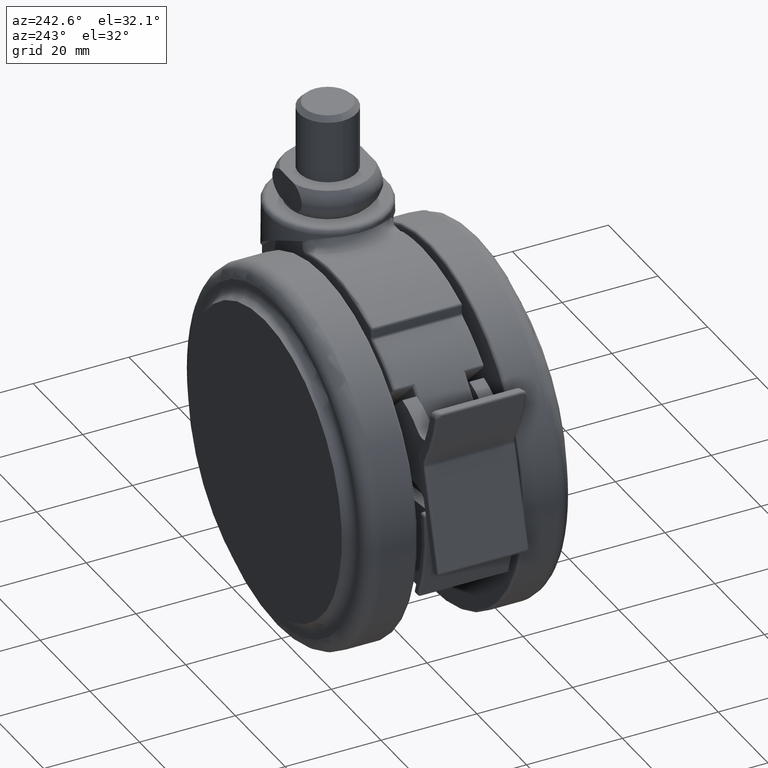
[diagram: clean part render]
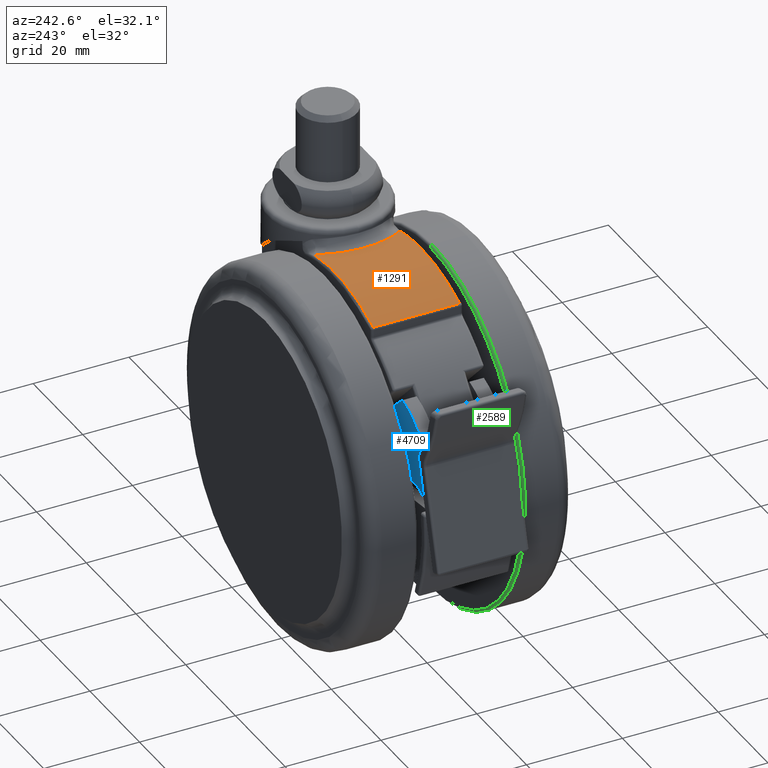
[diagram: same view with three faces highlighted in distinct colors, each labeled with its STEP entity id]
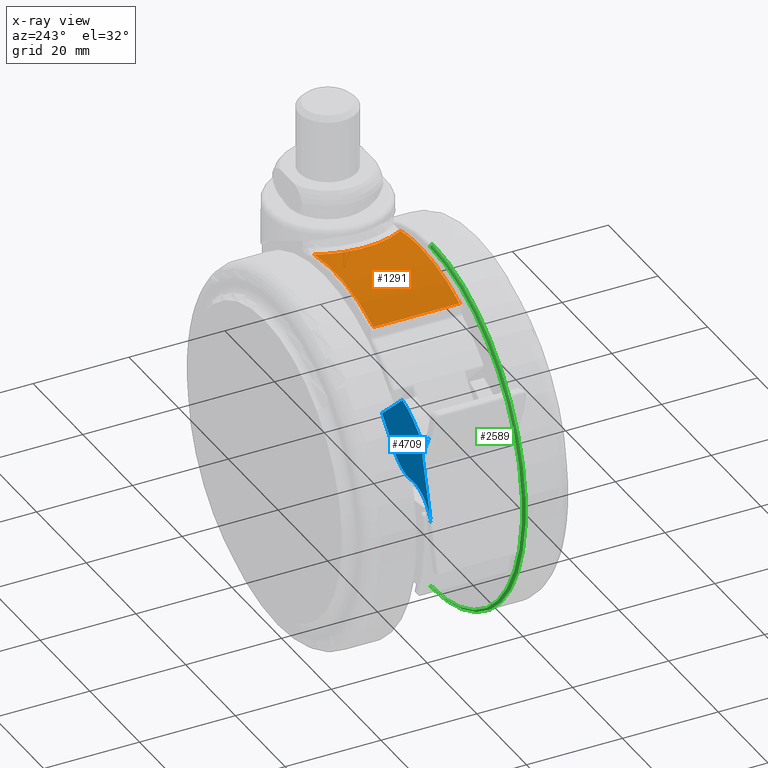
[diagram: x-ray of the same camera — body ghosted, the three highlighted faces saturated]
A machine part, auxiliary view with three faces highlighted in distinct colors.
The next image is the same camera in x-ray (body ghosted, the three faces saturated) — at least one of them is partly hidden behind the body in this view.
Their STEP definitions:

[orange] entity #1291 — the highlighted cylindrical surface (partial cylindrical patch) has radius 37.5 mm, axis along (0, -1, 0).
#46 = B_SPLINE_CURVE_WITH_KNOTS ( 'NONE', 3,
 ( #6292, #4271, #6318, #2264, #6974, #2945, #7649, #3623, #8316, #4298, #236, #4968, #908, #5671, #1603, #6345, #2296, #7013, #2975, #7675, #3658, #8349 ),
 .UNSPECIFIED., .F., .F.,
 ( 4, 2, 2, 2, 2, 2, 2, 2, 2, 2, 4 ),
 ( 0.0000000000000000000, 0.002433144462994349000, 0.004866288925988697900, 0.007299433388983046400, 0.009732577851977395800, 0.01094915008347457100, 0.01216572231497174500, 0.01459886677796609300, 0.01581543900946326800, 0.01703201124096044600, 0.01946515570395479500 ),
 .UNSPECIFIED. ) ;
#236 = CARTESIAN_POINT ( 'NONE',  ( -14.76286249200867000, 0.8001164787444028400, -3.367488309329601700 ) ) ;
#415 = CIRCLE ( 'NONE', #6105, 37.50000000000000000 ) ;
#446 = CIRCLE ( 'NONE', #6044, 37.50000000000000000 ) ;
#908 = CARTESIAN_POINT ( 'NONE',  ( -14.65106184547922300, 2.009139325001239500, -3.383386752798714300 ) ) ;
#1125 = CARTESIAN_POINT ( 'NONE',  ( -11.80583892490692000, 9.000000000000199000, -3.906206478756300000 ) ) ;
#1233 = CARTESIAN_POINT ( 'NONE',  ( -20.00000000000045100, -8.999999999999799300, -3.000000000000002700 ) ) ;
#1291 = ADVANCED_FACE ( 'NONE', ( #7226 ), #1645, .T. ) ;
#1603 = CARTESIAN_POINT ( 'NONE',  ( -14.27199484134090400, 3.979332644004980800, -3.439184762139114500 ) ) ;
#1645 = CYLINDRICAL_SURFACE ( 'NONE', #6274, 37.50000000000000000 ) ;
#1835 = ORIENTED_EDGE ( 'NONE', *, *, #5854, .T. ) ;
#1877 = VERTEX_POINT ( 'NONE', #2199 ) ;
#2199 = CARTESIAN_POINT ( 'NONE',  ( -35.70945945945850000, -8.999999999999799300, -6.449113322974390000 ) ) ;
#2264 = CARTESIAN_POINT ( 'NONE',  ( -13.45667544474254900, -6.252393314288934100, -3.573375431617505300 ) ) ;
#2280 = EDGE_CURVE ( 'NONE', #5620, #7815, #446, .T. ) ;
#2296 = CARTESIAN_POINT ( 'NONE',  ( -13.75682373942462900, 5.496854230182186100, -3.523008739348636900 ) ) ;
#2351 = VERTEX_POINT ( 'NONE', #1125 ) ;
#2438 = VECTOR ( 'NONE', #3513, 1000.000000000000000 ) ;
#2700 = CARTESIAN_POINT ( 'NONE',  ( -11.80583892490720100, -8.999999999999799300, -3.906206478756240100 ) ) ;
#2945 = CARTESIAN_POINT ( 'NONE',  ( -14.26965428946589900, -3.988591974172911200, -3.439535616074076400 ) ) ;
#2975 = CARTESIAN_POINT ( 'NONE',  ( -13.27228778837124200, 6.607394942648217500, -3.607947769029147700 ) ) ;
#3124 = ORIENTED_EDGE ( 'NONE', *, *, #3968, .T. ) ;
#3493 = ORIENTED_EDGE ( 'NONE', *, *, #7958, .T. ) ;
#3513 = DIRECTION ( 'NONE',  ( 0.0000000000000000000, -1.000000000000000000, 0.0000000000000000000 ) ) ;
#3623 = CARTESIAN_POINT ( 'NONE',  ( -14.71545526549742400, -1.603279406154955100, -3.373999062487971700 ) ) ;
#3658 = CARTESIAN_POINT ( 'NONE',  ( -12.28907039948639800, 8.357025413212014100, -3.798000245998260000 ) ) ;
#3662 = DIRECTION ( 'NONE',  ( 0.0000000000000000000, 1.000000000000000000, 0.0000000000000000000 ) ) ;
#3839 = CARTESIAN_POINT ( 'NONE',  ( -20.00000000000045100, -8.999999999999799300, -40.50000000000000000 ) ) ;
#3968 = EDGE_CURVE ( 'NONE', #1877, #5620, #415, .T. ) ;
#3970 = CARTESIAN_POINT ( 'NONE',  ( -20.00000000000045100, 9.000000000000199000, -40.50000000000000000 ) ) ;
#4230 = LINE ( 'NONE', #8199, #2438 ) ;
#4271 = CARTESIAN_POINT ( 'NONE',  ( -12.28908347849011800, -8.357008010647227500, -3.797997317319584500 ) ) ;
#4298 = CARTESIAN_POINT ( 'NONE',  ( -14.77855356133890500, 0.3982309277750187800, -3.365292554086369800 ) ) ;
#4505 = DIRECTION ( 'NONE',  ( 0.0000000000000000000, 0.0000000000000000000, 1.000000000000000000 ) ) ;
#4635 = DIRECTION ( 'NONE',  ( 0.0000000000000000000, 0.0000000000000000000, -1.000000000000000000 ) ) ;
#4883 = ORIENTED_EDGE ( 'NONE', *, *, #7354, .T. ) ;
#4968 = CARTESIAN_POINT ( 'NONE',  ( -14.69919688183547300, 1.605694505952603800, -3.376523330406665700 ) ) ;
#5464 = CARTESIAN_POINT ( 'NONE',  ( -35.70945945945850000, 9.000000000000199000, -6.449113322974390000 ) ) ;
#5620 = VERTEX_POINT ( 'NONE', #1233 ) ;
#5671 = CARTESIAN_POINT ( 'NONE',  ( -14.46055519043960800, 3.201425114573142900, -3.411173859305353800 ) ) ;
#5854 = EDGE_CURVE ( 'NONE', #2351, #5998, #7918, .T. ) ;
#5998 = VERTEX_POINT ( 'NONE', #5464 ) ;
#6044 = AXIS2_PLACEMENT_3D ( 'NONE', #3839, #8528, #4505 ) ;
#6105 = AXIS2_PLACEMENT_3D ( 'NONE', #7678, #3662, #8353 ) ;
#6149 = ORIENTED_EDGE ( 'NONE', *, *, #2280, .T. ) ;
#6274 = AXIS2_PLACEMENT_3D ( 'NONE', #8337, #7084, #6966 ) ;
#6292 = CARTESIAN_POINT ( 'NONE',  ( -11.80583892490720100, -8.999999999999799300, -3.906206478756240100 ) ) ;
#6318 = CARTESIAN_POINT ( 'NONE',  ( -12.71933375164516100, -7.671364508898795600, -3.711651338640235700 ) ) ;
#6345 = CARTESIAN_POINT ( 'NONE',  ( -13.89717161774413700, 5.120679773975008500, -3.499709419589013900 ) ) ;
#6966 = DIRECTION ( 'NONE',  ( 0.0000000000000000000, 0.0000000000000000000, -1.000000000000000000 ) ) ;
#6974 = CARTESIAN_POINT ( 'NONE',  ( -13.76673725347666100, -5.515690235254416200, -3.520798847902592200 ) ) ;
#7013 = CARTESIAN_POINT ( 'NONE',  ( -13.44440981816782200, 6.240356713991120700, -3.577115905190118500 ) ) ;
#7084 = DIRECTION ( 'NONE',  ( 0.0000000000000000000, -1.000000000000000000, 0.0000000000000000000 ) ) ;
#7226 = FACE_OUTER_BOUND ( 'NONE', #7460, .T. ) ;
#7354 = EDGE_CURVE ( 'NONE', #5998, #1877, #4230, .T. ) ;
#7460 = EDGE_LOOP ( 'NONE', ( #3124, #6149, #3493, #1835, #4883 ) ) ;
#7649 = CARTESIAN_POINT ( 'NONE',  ( -14.46233037150766300, -3.193139030446999100, -3.410910313829803800 ) ) ;
#7675 = CARTESIAN_POINT ( 'NONE',  ( -12.71572096823816400, 7.677998888504805400, -3.712341789016044400 ) ) ;
#7678 = CARTESIAN_POINT ( 'NONE',  ( -20.00000000000045100, -8.999999999999799300, -40.50000000000000000 ) ) ;
#7815 = VERTEX_POINT ( 'NONE', #2700 ) ;
#7918 = CIRCLE ( 'NONE', #8164, 37.50000000000000000 ) ;
#7958 = EDGE_CURVE ( 'NONE', #7815, #2351, #46, .T. ) ;
#8164 = AXIS2_PLACEMENT_3D ( 'NONE', #3970, #8659, #4635 ) ;
#8199 = CARTESIAN_POINT ( 'NONE',  ( -35.70945945945850000, 0.0000000000000000000, -6.449113322974390000 ) ) ;
#8316 = CARTESIAN_POINT ( 'NONE',  ( -14.77833516021256700, -0.8047802647944869400, -3.365323263524405900 ) ) ;
#8337 = CARTESIAN_POINT ( 'NONE',  ( -20.00000000000045100, 0.0000000000000000000, -40.50000000000000000 ) ) ;
#8349 = CARTESIAN_POINT ( 'NONE',  ( -11.80583892490692000, 9.000000000000199000, -3.906206478756300000 ) ) ;
#8353 = DIRECTION ( 'NONE',  ( 0.0000000000000000000, 0.0000000000000000000, 1.000000000000000000 ) ) ;
#8528 = DIRECTION ( 'NONE',  ( 0.0000000000000000000, 1.000000000000000000, 0.0000000000000000000 ) ) ;
#8659 = DIRECTION ( 'NONE',  ( 0.0000000000000000000, -1.000000000000000000, 0.0000000000000000000 ) ) ;

[blue] entity #4709 — the highlighted planar face has unit normal (0, 1, 0).
#284 = AXIS2_PLACEMENT_3D ( 'NONE', #2823, #7538, #3507 ) ;
#345 = DIRECTION ( 'NONE',  ( -1.000000000000000000, 1.514828950852986200E-015, -8.795781004952823100E-016 ) ) ;
#464 = CARTESIAN_POINT ( 'NONE',  ( -9.060436663462400700, 8.499999933647219000, 8.201191576490479900 ) ) ;
#540 = VERTEX_POINT ( 'NONE', #4753 ) ;
#577 = EDGE_CURVE ( 'NONE', #1350, #540, #3061, .T. ) ;
#693 = ORIENTED_EDGE ( 'NONE', *, *, #577, .T. ) ;
#847 = VERTEX_POINT ( 'NONE', #6091 ) ;
#883 = CARTESIAN_POINT ( 'NONE',  ( -54.34046594793340300, 8.499999933647361100, -23.86954272025879900 ) ) ;
#884 = DIRECTION ( 'NONE',  ( -1.505161159488250100E-015, -1.000000000000000000, 0.0000000000000000000 ) ) ;
#1046 = DIRECTION ( 'NONE',  ( -1.505161159488250100E-015, -1.000000000000000000, -0.0000000000000000000 ) ) ;
#1135 = CARTESIAN_POINT ( 'NONE',  ( -54.40490024721909600, 8.499999933647330900, -20.54548366835614800 ) ) ;
#1261 = DIRECTION ( 'NONE',  ( 0.0000000000000000000, 0.0000000000000000000, -1.000000000000000000 ) ) ;
#1350 = VERTEX_POINT ( 'NONE', #8455 ) ;
#1899 = VERTEX_POINT ( 'NONE', #2386 ) ;
#1902 = EDGE_CURVE ( 'NONE', #847, #3245, #5457, .T. ) ;
#1925 = VECTOR ( 'NONE', #4299, 1000.000000000000100 ) ;
#1965 = EDGE_CURVE ( 'NONE', #7037, #2679, #2793, .T. ) ;
#1990 = CARTESIAN_POINT ( 'NONE',  ( 1.279386975577844000E-014, 8.499999933647201200, 0.0000000000000000000 ) ) ;
#2058 = CARTESIAN_POINT ( 'NONE',  ( -54.40490024721909600, 8.499999933647330900, -17.54548366835614800 ) ) ;
#2076 = ORIENTED_EDGE ( 'NONE', *, *, #1902, .F. ) ;
#2112 = VECTOR ( 'NONE', #8557, 1000.000000000000000 ) ;
#2223 = LINE ( 'NONE', #464, #6805 ) ;
#2342 = ORIENTED_EDGE ( 'NONE', *, *, #8115, .T. ) ;
#2378 = VERTEX_POINT ( 'NONE', #3893 ) ;
#2379 = FACE_OUTER_BOUND ( 'NONE', #3254, .T. ) ;
#2386 = CARTESIAN_POINT ( 'NONE',  ( -57.94016279915580000, 8.499999933647339700, -37.11448098900775200 ) ) ;
#2562 = CIRCLE ( 'NONE', #5713, 7.539700884517517700 ) ;
#2591 = AXIS2_PLACEMENT_3D ( 'NONE', #7393, #3461, #8068 ) ;
#2595 = DIRECTION ( 'NONE',  ( -1.505161159488250100E-015, -1.000000000000000000, 0.0000000000000000000 ) ) ;
#2610 = AXIS2_PLACEMENT_3D ( 'NONE', #1990, #8709, #3359 ) ;
#2648 = EDGE_CURVE ( 'NONE', #1350, #1899, #5548, .T. ) ;
#2655 = AXIS2_PLACEMENT_3D ( 'NONE', #2058, #6791, #2734 ) ;
#2679 = VERTEX_POINT ( 'NONE', #3826 ) ;
#2688 = PLANE ( 'NONE',  #2610 ) ;
#2715 = ORIENTED_EDGE ( 'NONE', *, *, #7623, .T. ) ;
#2734 = DIRECTION ( 'NONE',  ( 0.0000000000000000000, 0.0000000000000000000, -1.000000000000000000 ) ) ;
#2793 = CIRCLE ( 'NONE', #2591, 7.539700884517517700 ) ;
#2823 = CARTESIAN_POINT ( 'NONE',  ( -54.40490024721909600, 8.499999933647330900, -17.54548366835614800 ) ) ;
#2931 = ORIENTED_EDGE ( 'NONE', *, *, #6529, .T. ) ;
#2963 = ORIENTED_EDGE ( 'NONE', *, *, #2648, .F. ) ;
#3061 = CIRCLE ( 'NONE', #6636, 2.000000000000001800 ) ;
#3141 = CARTESIAN_POINT ( 'NONE',  ( -38.21723842913699800, 8.499999933647309500, -24.01039051412945100 ) ) ;
#3162 = EDGE_CURVE ( 'NONE', #2679, #2378, #2562, .T. ) ;
#3245 = VERTEX_POINT ( 'NONE', #4071 ) ;
#3254 = EDGE_LOOP ( 'NONE', ( #2963, #693, #5176, #2931, #3673, #2076, #2715, #4721, #4855, #7081, #2342 ) ) ;
#3359 = DIRECTION ( 'NONE',  ( 1.000000000000000000, -1.505161159488250100E-015, 0.0000000000000000000 ) ) ;
#3461 = DIRECTION ( 'NONE',  ( -1.505161159488250100E-015, -1.000000000000000000, 0.0000000000000000000 ) ) ;
#3501 = DIRECTION ( 'NONE',  ( 0.0000000000000000000, 0.0000000000000000000, -1.000000000000000000 ) ) ;
#3507 = DIRECTION ( 'NONE',  ( 0.0000000000000000000, 0.0000000000000000000, -1.000000000000000000 ) ) ;
#3673 = ORIENTED_EDGE ( 'NONE', *, *, #5444, .T. ) ;
#3826 = CARTESIAN_POINT ( 'NONE',  ( -48.91120930311010500, 8.499999933647320200, -32.12926479270161900 ) ) ;
#3893 = CARTESIAN_POINT ( 'NONE',  ( -43.32137290699505200, 8.499999933647320200, -29.64928904821509900 ) ) ;
#3908 = CIRCLE ( 'NONE', #4644, 6.999999999999999100 ) ;
#4071 = CARTESIAN_POINT ( 'NONE',  ( -52.40087621545220000, 8.499999933647330900, -19.77794591442014700 ) ) ;
#4299 = DIRECTION ( 'NONE',  ( -0.2622656282287783600, 3.947520370787422900E-016, -0.9649957203271754000 ) ) ;
#4404 = DIRECTION ( 'NONE',  ( -1.505161159488250100E-015, -1.000000000000000000, -0.0000000000000000000 ) ) ;
#4476 = VERTEX_POINT ( 'NONE', #4940 ) ;
#4583 = EDGE_CURVE ( 'NONE', #5089, #2378, #2223, .T. ) ;
#4644 = AXIS2_PLACEMENT_3D ( 'NONE', #6641, #2595, #7299 ) ;
#4709 = ADVANCED_FACE ( 'NONE', ( #2379 ), #2688, .T. ) ;
#4721 = ORIENTED_EDGE ( 'NONE', *, *, #4583, .T. ) ;
#4753 = CARTESIAN_POINT ( 'NONE',  ( -54.80971956406580100, 8.499999933647298900, -23.14138068294870000 ) ) ;
#4855 = ORIENTED_EDGE ( 'NONE', *, *, #3162, .F. ) ;
#4884 = CIRCLE ( 'NONE', #284, 2.999999999999999100 ) ;
#4940 = CARTESIAN_POINT ( 'NONE',  ( -57.14348272376919600, 8.499999933647339700, -18.77029631489960300 ) ) ;
#5089 = VERTEX_POINT ( 'NONE', #3141 ) ;
#5176 = ORIENTED_EDGE ( 'NONE', *, *, #6939, .F. ) ;
#5210 = DIRECTION ( 'NONE',  ( -0.6710777015598730100, 1.010080091386565800E-015, -0.7413870234021620000 ) ) ;
#5444 = EDGE_CURVE ( 'NONE', #6279, #3245, #4884, .T. ) ;
#5457 = CIRCLE ( 'NONE', #8161, 13.99999999999999800 ) ;
#5506 = AXIS2_PLACEMENT_3D ( 'NONE', #8425, #4404, #345 ) ;
#5548 = LINE ( 'NONE', #883, #1925 ) ;
#5713 = AXIS2_PLACEMENT_3D ( 'NONE', #5715, #6882, #1261 ) ;
#5715 = CARTESIAN_POINT ( 'NONE',  ( -48.91120930311010500, 8.499999933647320200, -24.58956390818410000 ) ) ;
#5727 = LINE ( 'NONE', #7874, #2112 ) ;
#6091 = CARTESIAN_POINT ( 'NONE',  ( -46.40045229926659700, 8.499999933647320200, -16.60323044523709900 ) ) ;
#6279 = VERTEX_POINT ( 'NONE', #1135 ) ;
#6529 = EDGE_CURVE ( 'NONE', #4476, #6279, #7277, .T. ) ;
#6636 = AXIS2_PLACEMENT_3D ( 'NONE', #7881, #1046, #7420 ) ;
#6641 = CARTESIAN_POINT ( 'NONE',  ( -51.18519275686560400, 8.499999933647330900, -38.95034038660914900 ) ) ;
#6791 = DIRECTION ( 'NONE',  ( -1.505161159488250100E-015, -1.000000000000000000, 0.0000000000000000000 ) ) ;
#6805 = VECTOR ( 'NONE', #5210, 1000.000000000000000 ) ;
#6882 = DIRECTION ( 'NONE',  ( -1.505161159488250100E-015, -1.000000000000000000, 0.0000000000000000000 ) ) ;
#6939 = EDGE_CURVE ( 'NONE', #4476, #540, #7077, .T. ) ;
#7037 = VERTEX_POINT ( 'NONE', #8512 ) ;
#7077 = CIRCLE ( 'NONE', #5506, 35.50000000000000700 ) ;
#7081 = ORIENTED_EDGE ( 'NONE', *, *, #1965, .F. ) ;
#7277 = CIRCLE ( 'NONE', #2655, 2.999999999999999100 ) ;
#7299 = DIRECTION ( 'NONE',  ( 0.0000000000000000000, 0.0000000000000000000, -1.000000000000000000 ) ) ;
#7393 = CARTESIAN_POINT ( 'NONE',  ( -48.91120930311010500, 8.499999933647320200, -24.58956390818410000 ) ) ;
#7420 = DIRECTION ( 'NONE',  ( -1.000000000000000000, 1.734723475976805500E-015, 0.0000000000000000000 ) ) ;
#7538 = DIRECTION ( 'NONE',  ( -1.505161159488250100E-015, -1.000000000000000000, 0.0000000000000000000 ) ) ;
#7623 = EDGE_CURVE ( 'NONE', #847, #5089, #5727, .T. ) ;
#7874 = CARTESIAN_POINT ( 'NONE',  ( -29.15680176567460100, 8.499999933647249200, -32.21158209061990600 ) ) ;
#7881 = CARTESIAN_POINT ( 'NONE',  ( -56.50396160046809500, 8.499999933647361100, -24.20418072156725100 ) ) ;
#8068 = DIRECTION ( 'NONE',  ( 0.0000000000000000000, 0.0000000000000000000, -1.000000000000000000 ) ) ;
#8115 = EDGE_CURVE ( 'NONE', #7037, #1899, #3908, .T. ) ;
#8161 = AXIS2_PLACEMENT_3D ( 'NONE', #8168, #884, #3501 ) ;
#8168 = CARTESIAN_POINT ( 'NONE',  ( -43.04876406720655500, 8.499999933647320200, -30.19610306271829700 ) ) ;
#8425 = CARTESIAN_POINT ( 'NONE',  ( -24.73692341792615000, 8.499999933647249200, -4.276679997469274900 ) ) ;
#8455 = CARTESIAN_POINT ( 'NONE',  ( -54.57397015981370500, 8.499999933647361100, -24.72871197802484700 ) ) ;
#8512 = CARTESIAN_POINT ( 'NONE',  ( -50.09040516097779500, 8.499999933647330900, -32.03648183151200600 ) ) ;
#8557 = DIRECTION ( 'NONE',  ( 0.7413870234021614500, -1.115906951773537400E-015, -0.6710777015598735600 ) ) ;
#8709 = DIRECTION ( 'NONE',  ( 1.505161159488250100E-015, 1.000000000000000000, 0.0000000000000000000 ) ) ;

[green] entity #2589 — the highlighted toroidal blend (fillet) surface has major radius 37 mm and minor (blend) radius 0.5 mm.
#277 = AXIS2_PLACEMENT_3D ( 'NONE', #6014, #1952, #6695 ) ;
#333 = DIRECTION ( 'NONE',  ( 0.0000000000000000000, -1.000000000000000000, 0.0000000000000000000 ) ) ;
#567 = DIRECTION ( 'NONE',  ( 0.0000000000000000000, 0.0000000000000000000, -1.000000000000000000 ) ) ;
#804 = AXIS2_PLACEMENT_3D ( 'NONE', #4394, #333, #5072 ) ;
#808 = DIRECTION ( 'NONE',  ( 0.0000000000000000000, 0.0000000000000000000, -1.000000000000000000 ) ) ;
#923 = ORIENTED_EDGE ( 'NONE', *, *, #4173, .F. ) ;
#1535 = CARTESIAN_POINT ( 'NONE',  ( -20.00000000000000000, -11.50000000000000000, -78.00000000000000000 ) ) ;
#1602 = CIRCLE ( 'NONE', #804, 37.50000000000000000 ) ;
#1952 = DIRECTION ( 'NONE',  ( -1.000000000000000000, -0.0000000000000000000, -0.0000000000000000000 ) ) ;
#2224 = EDGE_LOOP ( 'NONE', ( #923, #8459, #6753, #8069 ) ) ;
#2243 = EDGE_CURVE ( 'NONE', #7752, #7728, #4274, .T. ) ;
#2574 = FACE_OUTER_BOUND ( 'NONE', #2224, .T. ) ;
#2589 = ADVANCED_FACE ( 'NONE', ( #2574 ), #5966, .T. ) ;
#2846 = CARTESIAN_POINT ( 'NONE',  ( -20.00000000000000000, -11.50000000000000000, -40.50000000000000000 ) ) ;
#3480 = EDGE_CURVE ( 'NONE', #7496, #4470, #1602, .T. ) ;
#3537 = DIRECTION ( 'NONE',  ( 0.0000000000000000000, -1.000000000000000000, 0.0000000000000000000 ) ) ;
#3708 = CIRCLE ( 'NONE', #277, 0.5000000000000004400 ) ;
#3785 = DIRECTION ( 'NONE',  ( 0.0000000000000000000, -1.000000000000000000, 0.0000000000000000000 ) ) ;
#4173 = EDGE_CURVE ( 'NONE', #7752, #7496, #6148, .T. ) ;
#4274 = CIRCLE ( 'NONE', #4681, 37.00000000000000000 ) ;
#4394 = CARTESIAN_POINT ( 'NONE',  ( -20.00000000000000000, -11.50000000000000000, -40.50000000000000000 ) ) ;
#4470 = VERTEX_POINT ( 'NONE', #1535 ) ;
#4616 = CARTESIAN_POINT ( 'NONE',  ( -20.00000000000000000, -11.00000000000000000, -77.50000000000000000 ) ) ;
#4634 = DIRECTION ( 'NONE',  ( 1.000000000000000000, 0.0000000000000000000, -1.224646799147353200E-016 ) ) ;
#4681 = AXIS2_PLACEMENT_3D ( 'NONE', #7794, #3785, #8482 ) ;
#5072 = DIRECTION ( 'NONE',  ( 0.0000000000000000000, 0.0000000000000000000, -1.000000000000000000 ) ) ;
#5891 = AXIS2_PLACEMENT_3D ( 'NONE', #2846, #3537, #808 ) ;
#5966 = TOROIDAL_SURFACE ( 'NONE', #5891, 37.00000000000000000, 0.5000000000000000000 ) ;
#6014 = CARTESIAN_POINT ( 'NONE',  ( -20.00000000000000000, -11.50000000000000000, -77.50000000000000000 ) ) ;
#6148 = CIRCLE ( 'NONE', #7731, 0.5000000000000004400 ) ;
#6695 = DIRECTION ( 'NONE',  ( 0.0000000000000000000, 0.0000000000000000000, 1.000000000000000000 ) ) ;
#6753 = ORIENTED_EDGE ( 'NONE', *, *, #7729, .T. ) ;
#7496 = VERTEX_POINT ( 'NONE', #7716 ) ;
#7716 = CARTESIAN_POINT ( 'NONE',  ( -19.99999999999999600, -11.50000000000000000, -3.000000000000002700 ) ) ;
#7728 = VERTEX_POINT ( 'NONE', #4616 ) ;
#7729 = EDGE_CURVE ( 'NONE', #7728, #4470, #3708, .T. ) ;
#7731 = AXIS2_PLACEMENT_3D ( 'NONE', #8656, #4634, #567 ) ;
#7752 = VERTEX_POINT ( 'NONE', #8694 ) ;
#7794 = CARTESIAN_POINT ( 'NONE',  ( -20.00000000000000000, -11.00000000000000000, -40.50000000000000000 ) ) ;
#8069 = ORIENTED_EDGE ( 'NONE', *, *, #3480, .F. ) ;
#8459 = ORIENTED_EDGE ( 'NONE', *, *, #2243, .T. ) ;
#8482 = DIRECTION ( 'NONE',  ( 0.0000000000000000000, 0.0000000000000000000, -1.000000000000000000 ) ) ;
#8656 = CARTESIAN_POINT ( 'NONE',  ( -19.99999999999999600, -11.50000000000000000, -3.500000000000003100 ) ) ;
#8694 = CARTESIAN_POINT ( 'NONE',  ( -19.99999999999999600, -11.00000000000000000, -3.500000000000003100 ) ) ;